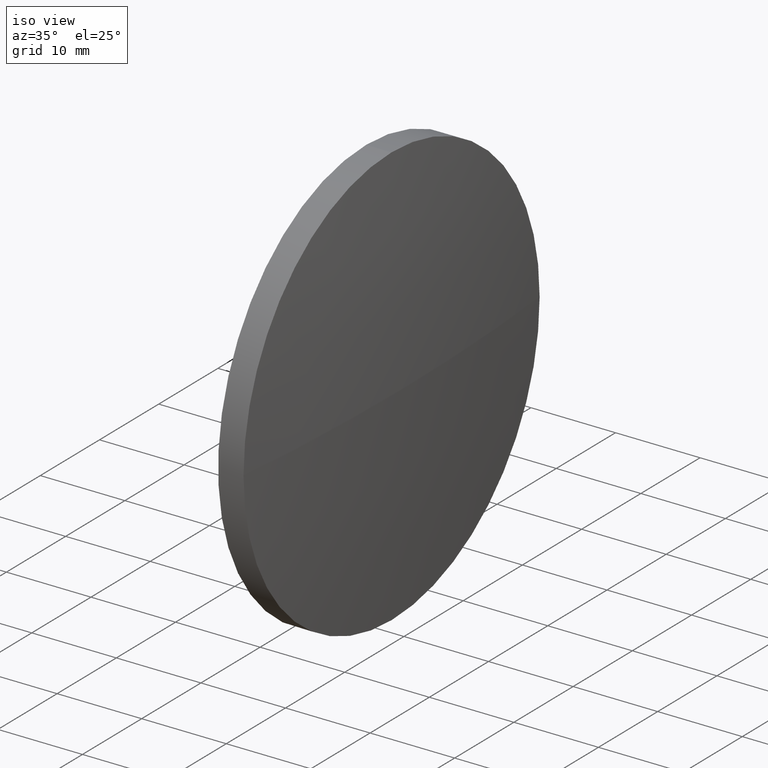
[diagram: clean part render]
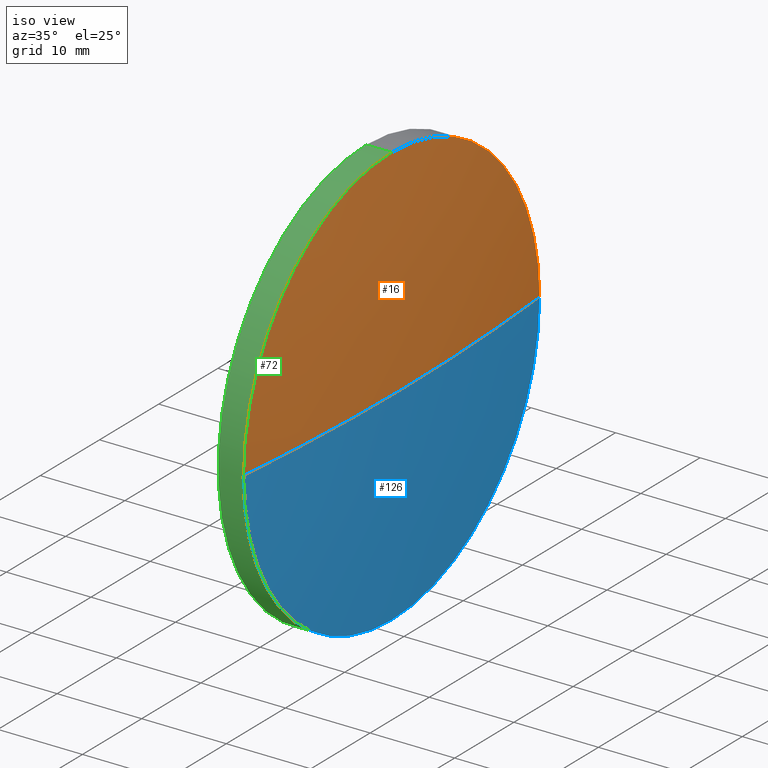
[diagram: same view with three faces highlighted in distinct colors, each labeled with its STEP entity id]
A machine part, iso view with three faces highlighted in distinct colors.
Their STEP definitions:

[orange] entity #16 — the highlighted spherical surface has radius 258.87 mm.
#3 = EDGE_CURVE ( 'NONE', #35, #85, #21, .T. ) ;
#7 = CARTESIAN_POINT ( 'NONE',  ( 260.5322890372076500, 110.4965729746749600, 0.0000000000000000000 ) ) ;
#11 = CARTESIAN_POINT ( 'NONE',  ( 518.1917518471264000, 110.4965729746752500, 24.99999999999999300 ) ) ;
#13 = ORIENTED_EDGE ( 'NONE', *, *, #94, .F. ) ;
#14 = AXIS2_PLACEMENT_3D ( 'NONE', #7, #118, #73 ) ;
#16 = ADVANCED_FACE ( 'NONE', ( #60 ), #139, .T. ) ;
#18 = DIRECTION ( 'NONE',  ( 0.0000000000000000000, 0.0000000000000000000, 1.000000000000000000 ) ) ;
#21 = CIRCLE ( 'NONE', #89, 24.99999999999999300 ) ;
#25 = CIRCLE ( 'NONE', #110, 24.99999999999999300 ) ;
#33 = DIRECTION ( 'NONE',  ( 0.0000000000000000000, 1.224646799147353200E-016, -1.000000000000000000 ) ) ;
#35 = VERTEX_POINT ( 'NONE', #86 ) ;
#40 = DIRECTION ( 'NONE',  ( -0.0000000000000000000, 0.0000000000000000000, -1.000000000000000000 ) ) ;
#42 = CARTESIAN_POINT ( 'NONE',  ( 519.4017518471263200, 110.4965729746749800, 0.0000000000000000000 ) ) ;
#48 = AXIS2_PLACEMENT_3D ( 'NONE', #125, #40, #157 ) ;
#52 = ORIENTED_EDGE ( 'NONE', *, *, #152, .T. ) ;
#60 = FACE_OUTER_BOUND ( 'NONE', #61, .T. ) ;
#61 = EDGE_LOOP ( 'NONE', ( #184, #52, #13, #127 ) ) ;
#62 = DIRECTION ( 'NONE',  ( -1.000000000000000000, -0.0000000000000000000, -0.0000000000000000000 ) ) ;
#66 = CIRCLE ( 'NONE', #79, 258.8694628099187300 ) ;
#73 = DIRECTION ( 'NONE',  ( 1.000000000000000000, 0.0000000000000000000, 0.0000000000000000000 ) ) ;
#79 = AXIS2_PLACEMENT_3D ( 'NONE', #176, #33, #146 ) ;
#85 = VERTEX_POINT ( 'NONE', #11 ) ;
#86 = CARTESIAN_POINT ( 'NONE',  ( 518.1917518471264000, 85.49657297467511800, -3.061616997868366500E-015 ) ) ;
#89 = AXIS2_PLACEMENT_3D ( 'NONE', #173, #102, #18 ) ;
#90 = CARTESIAN_POINT ( 'NONE',  ( 518.1917518471264000, 110.4965729746752500, 0.0000000000000000000 ) ) ;
#91 = CARTESIAN_POINT ( 'NONE',  ( 518.1917518471264000, 135.4965729746751000, 0.0000000000000000000 ) ) ;
#94 = EDGE_CURVE ( 'NONE', #85, #185, #25, .T. ) ;
#102 = DIRECTION ( 'NONE',  ( -1.000000000000000000, -0.0000000000000000000, -0.0000000000000000000 ) ) ;
#104 = CIRCLE ( 'NONE', #14, 258.8694628099186700 ) ;
#106 = DIRECTION ( 'NONE',  ( 0.0000000000000000000, 0.0000000000000000000, 1.000000000000000000 ) ) ;
#110 = AXIS2_PLACEMENT_3D ( 'NONE', #90, #62, #106 ) ;
#118 = DIRECTION ( 'NONE',  ( -0.0000000000000000000, 0.0000000000000000000, 1.000000000000000000 ) ) ;
#125 = CARTESIAN_POINT ( 'NONE',  ( 260.5322890372076500, 110.4965729746749600, 0.0000000000000000000 ) ) ;
#127 = ORIENTED_EDGE ( 'NONE', *, *, #3, .F. ) ;
#139 = SPHERICAL_SURFACE ( 'NONE', #48, 258.8694628099187300 ) ;
#146 = DIRECTION ( 'NONE',  ( 0.0000000000000000000, 1.000000000000000000, 1.224646799147353500E-016 ) ) ;
#152 = EDGE_CURVE ( 'NONE', #180, #185, #104, .T. ) ;
#157 = DIRECTION ( 'NONE',  ( 0.0000000000000000000, 1.000000000000000000, 0.0000000000000000000 ) ) ;
#173 = CARTESIAN_POINT ( 'NONE',  ( 518.1917518471264000, 110.4965729746752500, 0.0000000000000000000 ) ) ;
#176 = CARTESIAN_POINT ( 'NONE',  ( 260.5322890372076500, 110.4965729746749600, 0.0000000000000000000 ) ) ;
#180 = VERTEX_POINT ( 'NONE', #42 ) ;
#183 = EDGE_CURVE ( 'NONE', #180, #35, #66, .T. ) ;
#184 = ORIENTED_EDGE ( 'NONE', *, *, #183, .F. ) ;
#185 = VERTEX_POINT ( 'NONE', #91 ) ;

[blue] entity #126 — the highlighted spherical surface has radius 258.87 mm.
#7 = CARTESIAN_POINT ( 'NONE',  ( 260.5322890372076500, 110.4965729746749600, 0.0000000000000000000 ) ) ;
#14 = AXIS2_PLACEMENT_3D ( 'NONE', #7, #118, #73 ) ;
#20 = DIRECTION ( 'NONE',  ( -0.0000000000000000000, 0.0000000000000000000, -1.000000000000000000 ) ) ;
#29 = AXIS2_PLACEMENT_3D ( 'NONE', #77, #32, #158 ) ;
#32 = DIRECTION ( 'NONE',  ( -1.000000000000000000, -0.0000000000000000000, -0.0000000000000000000 ) ) ;
#33 = DIRECTION ( 'NONE',  ( 0.0000000000000000000, 1.224646799147353200E-016, -1.000000000000000000 ) ) ;
#35 = VERTEX_POINT ( 'NONE', #86 ) ;
#38 = ORIENTED_EDGE ( 'NONE', *, *, #69, .F. ) ;
#42 = CARTESIAN_POINT ( 'NONE',  ( 519.4017518471263200, 110.4965729746749800, 0.0000000000000000000 ) ) ;
#57 = CARTESIAN_POINT ( 'NONE',  ( 518.1917518471264000, 110.4965729746752500, 0.0000000000000000000 ) ) ;
#66 = CIRCLE ( 'NONE', #79, 258.8694628099187300 ) ;
#69 = EDGE_CURVE ( 'NONE', #185, #172, #165, .T. ) ;
#70 = ORIENTED_EDGE ( 'NONE', *, *, #183, .T. ) ;
#73 = DIRECTION ( 'NONE',  ( 1.000000000000000000, 0.0000000000000000000, 0.0000000000000000000 ) ) ;
#77 = CARTESIAN_POINT ( 'NONE',  ( 518.1917518471264000, 110.4965729746752500, 0.0000000000000000000 ) ) ;
#79 = AXIS2_PLACEMENT_3D ( 'NONE', #176, #33, #146 ) ;
#84 = SPHERICAL_SURFACE ( 'NONE', #142, 258.8694628099187300 ) ;
#86 = CARTESIAN_POINT ( 'NONE',  ( 518.1917518471264000, 85.49657297467511800, -3.061616997868366500E-015 ) ) ;
#91 = CARTESIAN_POINT ( 'NONE',  ( 518.1917518471264000, 135.4965729746751000, 0.0000000000000000000 ) ) ;
#92 = CARTESIAN_POINT ( 'NONE',  ( 518.1917518471264000, 110.4965729746752500, -24.99999999999999300 ) ) ;
#104 = CIRCLE ( 'NONE', #14, 258.8694628099186700 ) ;
#108 = ORIENTED_EDGE ( 'NONE', *, *, #160, .F. ) ;
#117 = DIRECTION ( 'NONE',  ( 0.0000000000000000000, 1.000000000000000000, 0.0000000000000000000 ) ) ;
#118 = DIRECTION ( 'NONE',  ( -0.0000000000000000000, 0.0000000000000000000, 1.000000000000000000 ) ) ;
#121 = DIRECTION ( 'NONE',  ( 0.0000000000000000000, 0.0000000000000000000, 1.000000000000000000 ) ) ;
#126 = ADVANCED_FACE ( 'NONE', ( #143 ), #84, .T. ) ;
#130 = CIRCLE ( 'NONE', #29, 24.99999999999999300 ) ;
#135 = ORIENTED_EDGE ( 'NONE', *, *, #152, .F. ) ;
#142 = AXIS2_PLACEMENT_3D ( 'NONE', #164, #20, #117 ) ;
#143 = FACE_OUTER_BOUND ( 'NONE', #150, .T. ) ;
#146 = DIRECTION ( 'NONE',  ( 0.0000000000000000000, 1.000000000000000000, 1.224646799147353500E-016 ) ) ;
#150 = EDGE_LOOP ( 'NONE', ( #135, #70, #108, #38 ) ) ;
#152 = EDGE_CURVE ( 'NONE', #180, #185, #104, .T. ) ;
#156 = AXIS2_PLACEMENT_3D ( 'NONE', #57, #179, #121 ) ;
#158 = DIRECTION ( 'NONE',  ( 0.0000000000000000000, 0.0000000000000000000, 1.000000000000000000 ) ) ;
#160 = EDGE_CURVE ( 'NONE', #172, #35, #130, .T. ) ;
#164 = CARTESIAN_POINT ( 'NONE',  ( 260.5322890372076500, 110.4965729746749600, 0.0000000000000000000 ) ) ;
#165 = CIRCLE ( 'NONE', #156, 24.99999999999999300 ) ;
#172 = VERTEX_POINT ( 'NONE', #92 ) ;
#176 = CARTESIAN_POINT ( 'NONE',  ( 260.5322890372076500, 110.4965729746749600, 0.0000000000000000000 ) ) ;
#179 = DIRECTION ( 'NONE',  ( -1.000000000000000000, -0.0000000000000000000, -0.0000000000000000000 ) ) ;
#180 = VERTEX_POINT ( 'NONE', #42 ) ;
#183 = EDGE_CURVE ( 'NONE', #180, #35, #66, .T. ) ;
#185 = VERTEX_POINT ( 'NONE', #91 ) ;

[green] entity #72 — the highlighted cylindrical surface (partial cylindrical patch) has radius 25 mm, axis along (-1, -0, -0).
#1 = CARTESIAN_POINT ( 'NONE',  ( 511.2199765580103300, 110.4965729746752500, 0.0000000000000000000 ) ) ;
#3 = EDGE_CURVE ( 'NONE', #35, #85, #21, .T. ) ;
#5 = CARTESIAN_POINT ( 'NONE',  ( 515.1917518471264000, 110.4965729746752500, -24.99999999999999300 ) ) ;
#11 = CARTESIAN_POINT ( 'NONE',  ( 518.1917518471264000, 110.4965729746752500, 24.99999999999999300 ) ) ;
#12 = AXIS2_PLACEMENT_3D ( 'NONE', #1, #71, #114 ) ;
#18 = DIRECTION ( 'NONE',  ( 0.0000000000000000000, 0.0000000000000000000, 1.000000000000000000 ) ) ;
#19 = LINE ( 'NONE', #129, #119 ) ;
#21 = CIRCLE ( 'NONE', #89, 24.99999999999999300 ) ;
#28 = CARTESIAN_POINT ( 'NONE',  ( 515.1917518471264000, 110.4965729746752500, 0.0000000000000000000 ) ) ;
#29 = AXIS2_PLACEMENT_3D ( 'NONE', #77, #32, #158 ) ;
#30 = ORIENTED_EDGE ( 'NONE', *, *, #160, .T. ) ;
#32 = DIRECTION ( 'NONE',  ( -1.000000000000000000, -0.0000000000000000000, -0.0000000000000000000 ) ) ;
#35 = VERTEX_POINT ( 'NONE', #86 ) ;
#47 = ORIENTED_EDGE ( 'NONE', *, *, #51, .F. ) ;
#50 = ORIENTED_EDGE ( 'NONE', *, *, #96, .T. ) ;
#51 = EDGE_CURVE ( 'NONE', #68, #141, #101, .T. ) ;
#68 = VERTEX_POINT ( 'NONE', #5 ) ;
#71 = DIRECTION ( 'NONE',  ( -1.000000000000000000, -0.0000000000000000000, -0.0000000000000000000 ) ) ;
#72 = ADVANCED_FACE ( 'NONE', ( #168 ), #115, .T. ) ;
#77 = CARTESIAN_POINT ( 'NONE',  ( 518.1917518471264000, 110.4965729746752500, 0.0000000000000000000 ) ) ;
#78 = CARTESIAN_POINT ( 'NONE',  ( 515.1917518471264000, 110.4965729746752500, 24.99999999999999300 ) ) ;
#85 = VERTEX_POINT ( 'NONE', #11 ) ;
#86 = CARTESIAN_POINT ( 'NONE',  ( 518.1917518471264000, 85.49657297467511800, -3.061616997868366500E-015 ) ) ;
#89 = AXIS2_PLACEMENT_3D ( 'NONE', #173, #102, #18 ) ;
#92 = CARTESIAN_POINT ( 'NONE',  ( 518.1917518471264000, 110.4965729746752500, -24.99999999999999300 ) ) ;
#93 = EDGE_LOOP ( 'NONE', ( #120, #30, #159, #50, #47 ) ) ;
#96 = EDGE_CURVE ( 'NONE', #85, #141, #19, .T. ) ;
#101 = CIRCLE ( 'NONE', #105, 24.99999999999999300 ) ;
#102 = DIRECTION ( 'NONE',  ( -1.000000000000000000, -0.0000000000000000000, -0.0000000000000000000 ) ) ;
#105 = AXIS2_PLACEMENT_3D ( 'NONE', #28, #155, #154 ) ;
#114 = DIRECTION ( 'NONE',  ( 0.0000000000000000000, 0.0000000000000000000, 1.000000000000000000 ) ) ;
#115 = CYLINDRICAL_SURFACE ( 'NONE', #12, 24.99999999999999300 ) ;
#119 = VECTOR ( 'NONE', #145, 1000.000000000000000 ) ;
#120 = ORIENTED_EDGE ( 'NONE', *, *, #149, .F. ) ;
#129 = CARTESIAN_POINT ( 'NONE',  ( 511.2199765580103300, 110.4965729746752500, 24.99999999999999300 ) ) ;
#130 = CIRCLE ( 'NONE', #29, 24.99999999999999300 ) ;
#131 = CARTESIAN_POINT ( 'NONE',  ( 511.2199765580103300, 110.4965729746752500, -24.99999999999999300 ) ) ;
#137 = VECTOR ( 'NONE', #181, 1000.000000000000000 ) ;
#141 = VERTEX_POINT ( 'NONE', #78 ) ;
#145 = DIRECTION ( 'NONE',  ( -1.000000000000000000, -0.0000000000000000000, -0.0000000000000000000 ) ) ;
#149 = EDGE_CURVE ( 'NONE', #172, #68, #171, .T. ) ;
#154 = DIRECTION ( 'NONE',  ( 0.0000000000000000000, 0.0000000000000000000, 1.000000000000000000 ) ) ;
#155 = DIRECTION ( 'NONE',  ( -1.000000000000000000, -0.0000000000000000000, -0.0000000000000000000 ) ) ;
#158 = DIRECTION ( 'NONE',  ( 0.0000000000000000000, 0.0000000000000000000, 1.000000000000000000 ) ) ;
#159 = ORIENTED_EDGE ( 'NONE', *, *, #3, .T. ) ;
#160 = EDGE_CURVE ( 'NONE', #172, #35, #130, .T. ) ;
#168 = FACE_OUTER_BOUND ( 'NONE', #93, .T. ) ;
#171 = LINE ( 'NONE', #131, #137 ) ;
#172 = VERTEX_POINT ( 'NONE', #92 ) ;
#173 = CARTESIAN_POINT ( 'NONE',  ( 518.1917518471264000, 110.4965729746752500, 0.0000000000000000000 ) ) ;
#181 = DIRECTION ( 'NONE',  ( -1.000000000000000000, -0.0000000000000000000, -0.0000000000000000000 ) ) ;